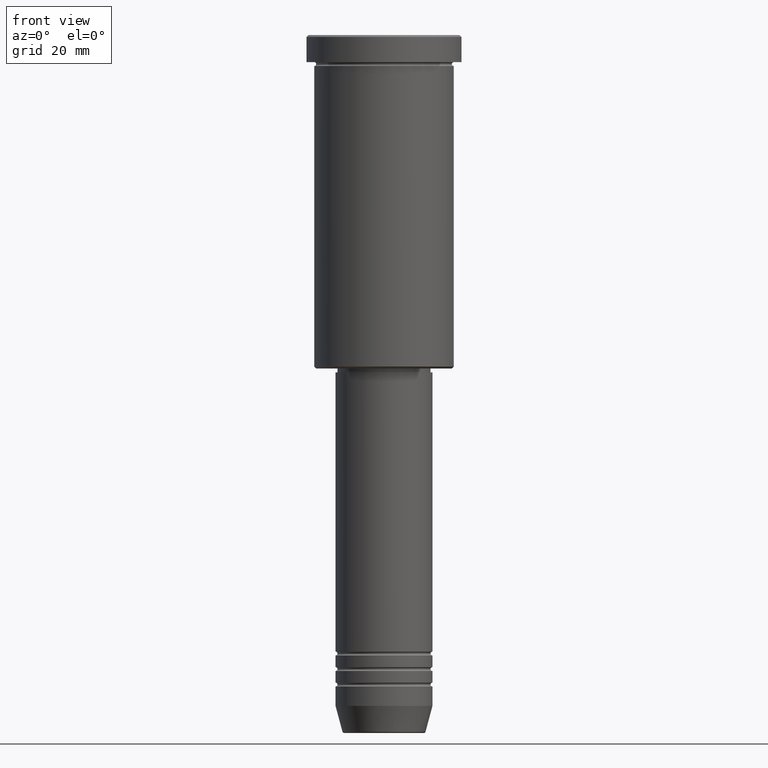
[diagram: clean part render]
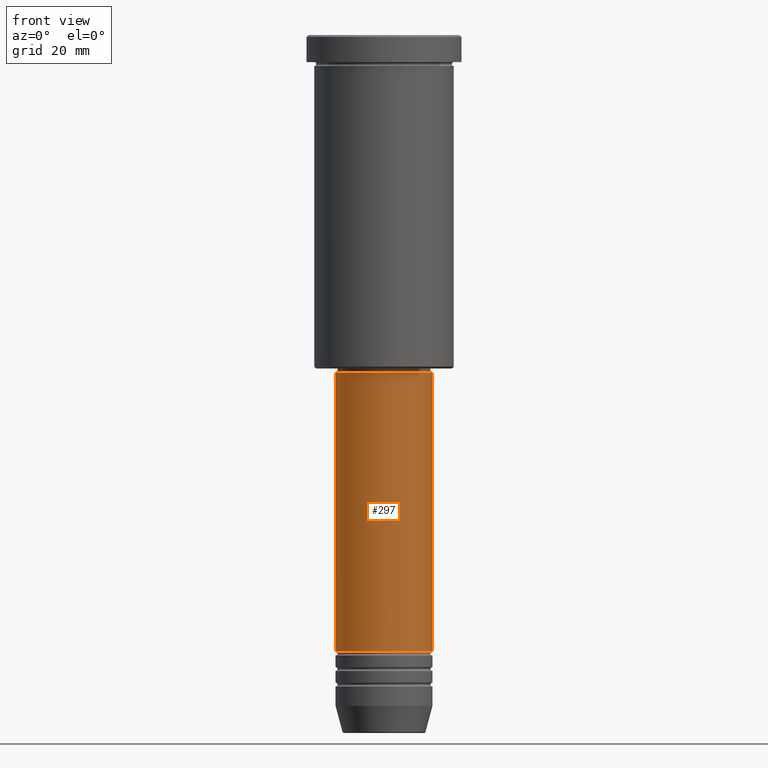
[diagram: same view with one face highlighted and labeled with its STEP entity id]
A machine part, front view. The second image highlights one B-rep face of the part: STEP entity #297.
In plain terms, the highlighted cylindrical surface (partial cylindrical patch) has radius 12.5 mm, axis along (-0, -0, 1).
Its self-contained STEP definition (entity closure, byte-faithful):
#31 = ORIENTED_EDGE ( 'NONE', *, *, #59, .T. ) ;
#59 = EDGE_CURVE ( 'NONE', #84, #456, #672, .T. ) ;
#69 = CIRCLE ( 'NONE', #664, 12.50000000000000000 ) ;
#84 = VERTEX_POINT ( 'NONE', #853 ) ;
#92 = EDGE_CURVE ( 'NONE', #1045, #456, #327, .T. ) ;
#151 = FACE_OUTER_BOUND ( 'NONE', #1128, .T. ) ;
#162 = ORIENTED_EDGE ( 'NONE', *, *, #173, .F. ) ;
#173 = EDGE_CURVE ( 'NONE', #592, #1045, #573, .T. ) ;
#297 = ADVANCED_FACE ( 'NONE', ( #151 ), #804, .T. ) ;
#327 = CIRCLE ( 'NONE', #1117, 12.50000000000000000 ) ;
#396 = CARTESIAN_POINT ( 'NONE',  ( 0.000000000000000000, 0.000000000000000000, -87.00000000000002842 ) ) ;
#455 = CARTESIAN_POINT ( 'NONE',  ( 12.50000000000000000, 0.000000000000000000, -87.00000000000002842 ) ) ;
#456 = VERTEX_POINT ( 'NONE', #455 ) ;
#573 = LINE ( 'NONE', #949, #1092 ) ;
#580 = DIRECTION ( 'NONE',  ( -0.000000000000000000, -0.000000000000000000, 1.000000000000000000 ) ) ;
#591 = DIRECTION ( 'NONE',  ( 1.000000000000000000, 0.000000000000000000, 0.000000000000000000 ) ) ;
#592 = VERTEX_POINT ( 'NONE', #1150 ) ;
#664 = AXIS2_PLACEMENT_3D ( 'NONE', #837, #1105, #746 ) ;
#672 = LINE ( 'NONE', #860, #755 ) ;
#693 = CARTESIAN_POINT ( 'NONE',  ( 0.000000000000000000, 0.000000000000000000, 0.000000000000000000 ) ) ;
#746 = DIRECTION ( 'NONE',  ( 1.000000000000000000, 0.000000000000000000, 0.000000000000000000 ) ) ;
#747 = ORIENTED_EDGE ( 'NONE', *, *, #950, .T. ) ;
#755 = VECTOR ( 'NONE', #580, 1000.000000000000000 ) ;
#791 = DIRECTION ( 'NONE',  ( -0.000000000000000000, -0.000000000000000000, 1.000000000000000000 ) ) ;
#804 = CYLINDRICAL_SURFACE ( 'NONE', #929, 12.50000000000000000 ) ;
#837 = CARTESIAN_POINT ( 'NONE',  ( 0.000000000000000000, 0.000000000000000000, -159.0000000000000000 ) ) ;
#844 = ORIENTED_EDGE ( 'NONE', *, *, #92, .F. ) ;
#852 = CARTESIAN_POINT ( 'NONE',  ( -12.50000000000000000, 1.530808498934191521E-15, -87.00000000000002842 ) ) ;
#853 = CARTESIAN_POINT ( 'NONE',  ( 12.50000000000000000, 0.000000000000000000, -159.0000000000000000 ) ) ;
#860 = CARTESIAN_POINT ( 'NONE',  ( 12.50000000000000000, 0.000000000000000000, 0.000000000000000000 ) ) ;
#870 = DIRECTION ( 'NONE',  ( -0.000000000000000000, -0.000000000000000000, 1.000000000000000000 ) ) ;
#899 = DIRECTION ( 'NONE',  ( 1.000000000000000000, 0.000000000000000000, 0.000000000000000000 ) ) ;
#929 = AXIS2_PLACEMENT_3D ( 'NONE', #693, #791, #899 ) ;
#949 = CARTESIAN_POINT ( 'NONE',  ( -12.50000000000000000, 1.530808498934191521E-15, 0.000000000000000000 ) ) ;
#950 = EDGE_CURVE ( 'NONE', #592, #84, #69, .T. ) ;
#1045 = VERTEX_POINT ( 'NONE', #852 ) ;
#1047 = DIRECTION ( 'NONE',  ( -0.000000000000000000, -0.000000000000000000, 1.000000000000000000 ) ) ;
#1092 = VECTOR ( 'NONE', #1047, 1000.000000000000000 ) ;
#1105 = DIRECTION ( 'NONE',  ( -0.000000000000000000, -0.000000000000000000, 1.000000000000000000 ) ) ;
#1117 = AXIS2_PLACEMENT_3D ( 'NONE', #396, #870, #591 ) ;
#1128 = EDGE_LOOP ( 'NONE', ( #162, #747, #31, #844 ) ) ;
#1150 = CARTESIAN_POINT ( 'NONE',  ( -12.50000000000000000, 1.530808498934191521E-15, -159.0000000000000000 ) ) ;